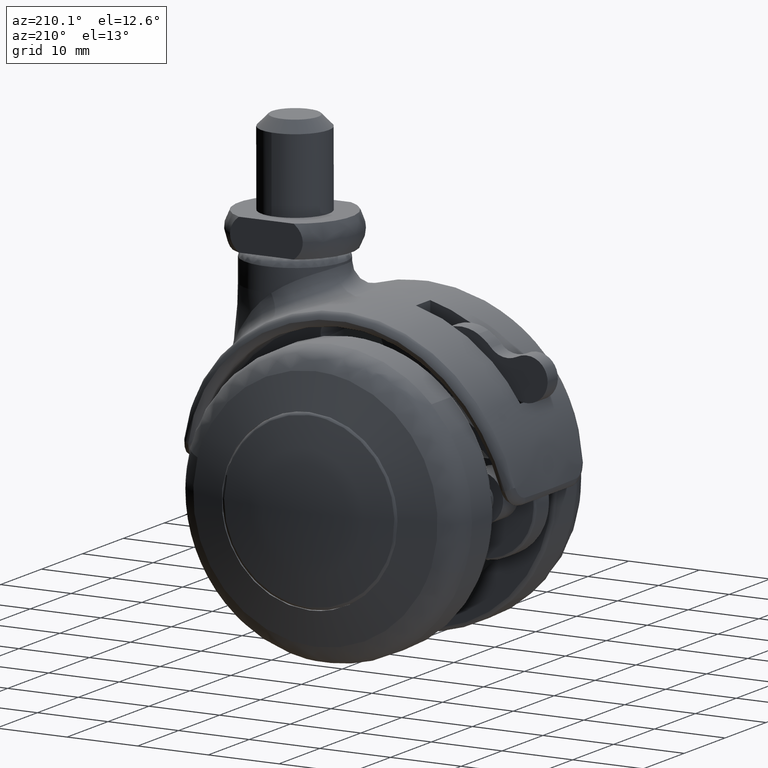
[diagram: clean part render]
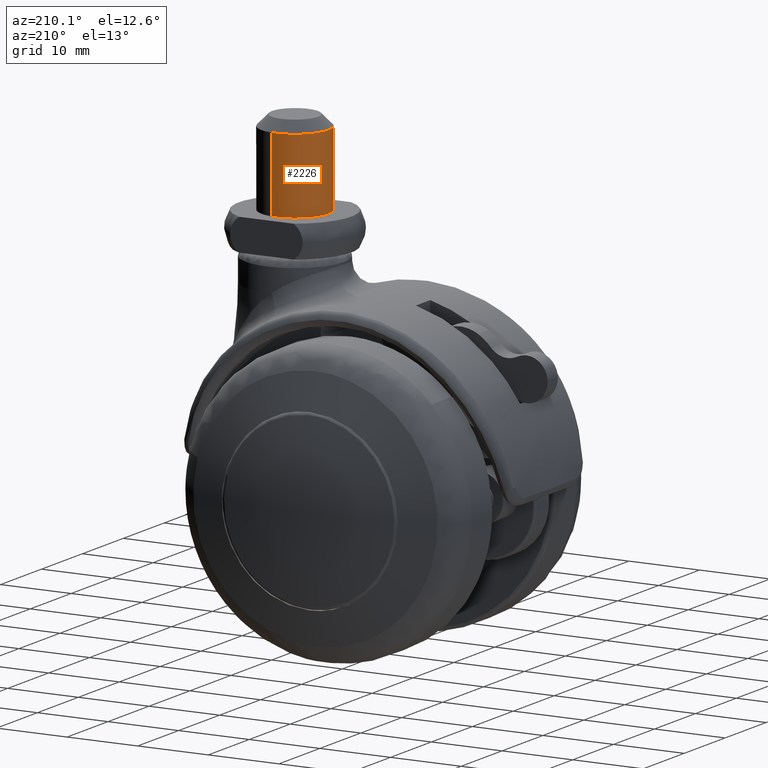
[diagram: same view with one face highlighted and labeled with its STEP entity id]
A machine part, auxiliary view. The second image highlights one B-rep face of the part: STEP entity #2226.
In plain terms, the highlighted face is a freeform B-spline surface patch.
Its self-contained STEP definition (entity closure, byte-faithful):
#1905=CARTESIAN_POINT('',(11.937861957099010,4.729207869309919,43.499999999955982));
#1906=VERTEX_POINT('',#1905);
#1907=CARTESIAN_POINT('',(13.091159609957870,4.725667843337538,43.500000000000000));
#1908=VERTEX_POINT('',#1907);
#1909=CARTESIAN_POINT('',(11.937861957099010,4.729207869309919,43.499999999955975));
#1910=CARTESIAN_POINT('',(12.217945129811174,4.762500000000001,43.500000000000014));
#1911=CARTESIAN_POINT('',(12.500000000000000,4.762500000000001,43.500000000000000));
#1912=CARTESIAN_POINT('',(12.796727217431563,4.762500000000001,43.500000000000000));
#1913=CARTESIAN_POINT('',(13.091159609957865,4.725667843337538,43.500000000000007));
#1921=(BOUNDED_CURVE()B_SPLINE_CURVE(2,(#1909,#1910,#1911,#1912,#1913),.UNSPECIFIED.,.F.,.U.)B_SPLINE_CURVE_WITH_KNOTS((3,2,3),(0.229562473491130,0.250000000000000,0.271473928974461),.UNSPECIFIED.)CURVE()GEOMETRIC_REPRESENTATION_ITEM()RATIONAL_B_SPLINE_CURVE((0.956026754139838,0.976055948304928,1.0,0.974841727288395,0.954005430267423))REPRESENTATION_ITEM(''));
#1922=EDGE_CURVE('',#1906,#1908,#1921,.T.);
#2019=CARTESIAN_POINT('',(7.737500000000001,9.551930E-016,43.500000000000000));
#2020=VERTEX_POINT('',#2019);
#2021=CARTESIAN_POINT('',(7.737500000000001,9.551930E-016,43.500000000000000));
#2022=CARTESIAN_POINT('',(7.737500000000001,4.229931179225524,43.500000000000000));
#2023=CARTESIAN_POINT('',(11.937861957099010,4.729207869309919,43.499999999955975));
#2031=(BOUNDED_CURVE()B_SPLINE_CURVE(2,(#2021,#2022,#2023),.UNSPECIFIED.,.F.,.U.)B_SPLINE_CURVE_WITH_KNOTS((3,3),(0.0,0.229562473491130),.UNSPECIFIED.)CURVE()GEOMETRIC_REPRESENTATION_ITEM()RATIONAL_B_SPLINE_CURVE((1.0,0.731050832881620,0.956026754139838))REPRESENTATION_ITEM(''));
#2032=EDGE_CURVE('',#2020,#1906,#2031,.T.);
#2034=CARTESIAN_POINT('',(12.458439874563970,-4.762318658592023,43.500000000000000));
#2035=VERTEX_POINT('',#2034);
#2036=CARTESIAN_POINT('',(12.458439874563974,-4.762318658592023,43.500000000000007));
#2037=CARTESIAN_POINT('',(7.737500000000003,-4.721119640210691,43.500000000000014));
#2038=CARTESIAN_POINT('',(7.737500000000001,9.551930E-016,43.500000000000000));
#2046=(BOUNDED_CURVE()B_SPLINE_CURVE(2,(#2036,#2037,#2038),.UNSPECIFIED.,.F.,.U.)B_SPLINE_CURVE_WITH_KNOTS((3,3),(0.751539894344236,1.0),.UNSPECIFIED.)CURVE()GEOMETRIC_REPRESENTATION_ITEM()RATIONAL_B_SPLINE_CURVE((0.996414028079002,0.708910879631011,1.0))REPRESENTATION_ITEM(''));
#2047=EDGE_CURVE('',#2035,#2020,#2046,.T.);
#2120=CARTESIAN_POINT('',(12.458439874579870,-4.762318658592162,32.999999990539102));
#2121=VERTEX_POINT('',#2120);
#2122=CARTESIAN_POINT('',(12.458439874563970,-4.762318658592023,43.500000000000000));
#2123=CARTESIAN_POINT('',(12.458439874579870,-4.762318658592162,32.999999990539102));
#2124=QUASI_UNIFORM_CURVE('',1,(#2122,#2123),.UNSPECIFIED.,.F.,.U.);
#2125=EDGE_CURVE('',#2035,#2121,#2124,.T.);
#2144=CARTESIAN_POINT('',(13.091159700149211,4.725667832055009,32.999999990539102));
#2145=VERTEX_POINT('',#2144);
#2159=CARTESIAN_POINT('',(13.091159609957870,4.725667843337538,43.500000000000000));
#2160=CARTESIAN_POINT('',(13.091159700149211,4.725667832055009,32.999999990539102));
#2161=QUASI_UNIFORM_CURVE('',1,(#2159,#2160),.UNSPECIFIED.,.F.,.U.);
#2162=EDGE_CURVE('',#1908,#2145,#2161,.T.);
#2167=CARTESIAN_POINT('',(12.458439874688990,-4.762318658593113,43.762500000236528));
#2168=CARTESIAN_POINT('',(7.696121216095881,-4.720758533282107,43.762500000236528));
#2169=CARTESIAN_POINT('',(7.737681341406886,0.041560125311007,43.762500000236528));
#2170=CARTESIAN_POINT('',(7.779241466717893,4.803878783904120,43.762500000236528));
#2171=CARTESIAN_POINT('',(12.541560125311010,4.762318658593115,43.762500000236528));
#2172=CARTESIAN_POINT('',(12.817421382038306,4.759911253877063,43.762500000236528));
#2173=CARTESIAN_POINT('',(13.091159609905191,4.725667843344128,43.762500000236528));
#2174=CARTESIAN_POINT('',(12.458439874688990,-4.762318658593113,32.730937490296647));
#2175=CARTESIAN_POINT('',(7.696121216095881,-4.720758533282107,32.730937490296647));
#2176=CARTESIAN_POINT('',(7.737681341406886,0.041560125311007,32.730937490296647));
#2177=CARTESIAN_POINT('',(7.779241466717893,4.803878783904120,32.730937490296647));
#2178=CARTESIAN_POINT('',(12.541560125311010,4.762318658593115,32.730937490296647));
#2179=CARTESIAN_POINT('',(12.817421382038306,4.759911253877063,32.730937490296661));
#2180=CARTESIAN_POINT('',(13.091159609905191,4.725667843344128,32.730937490296654));
#2188=(BOUNDED_SURFACE()B_SPLINE_SURFACE(2,1,((#2167,#2174),(#2168,#2175),(#2169,#2176),(#2170,#2177),(#2171,#2178),(#2172,#2179),(#2173,#2180)),.UNSPECIFIED.,.F.,.F.,.U.)B_SPLINE_SURFACE_WITH_KNOTS((3,2,2,3),(2,2),(0.0,7.890768363207459,15.781536726414920,16.412798195471520),(0.0,11.031562509939880),.UNSPECIFIED.)GEOMETRIC_REPRESENTATION_ITEM()RATIONAL_B_SPLINE_SURFACE(((1.0,1.0),(0.707106781186548,0.707106781186548),(1.0,1.0),(0.707106781186548,0.707106781186548),(1.0,1.0),(0.976568542494924,0.976568542494924),(0.956886118190660,0.956886118190660)))REPRESENTATION_ITEM('')SURFACE());
#2189=ORIENTED_EDGE('',*,*,#2032,.T.);
#2190=ORIENTED_EDGE('',*,*,#1922,.T.);
#2191=ORIENTED_EDGE('',*,*,#2162,.T.);
#2192=CARTESIAN_POINT('',(7.737500000000001,9.551930E-016,32.999999990539102));
#2193=VERTEX_POINT('',#2192);
#2194=CARTESIAN_POINT('',(13.091159700149204,4.725667832055010,32.999999990539102));
#2195=CARTESIAN_POINT('',(12.796727308678703,4.762500000000001,32.999999990539088));
#2196=CARTESIAN_POINT('',(12.500000000000000,4.762500000000001,32.999999990539102));
#2197=CARTESIAN_POINT('',(7.737500000000002,4.762500000000002,32.999999990539095));
#2198=CARTESIAN_POINT('',(7.737500000000001,9.551930E-016,32.999999990539102));
#2206=(BOUNDED_CURVE()B_SPLINE_CURVE(2,(#2194,#2195,#2196,#2197,#2198),.UNSPECIFIED.,.F.,.U.)B_SPLINE_CURVE_WITH_KNOTS((3,2,3),(0.728526064588183,0.750000000000000,1.0),.UNSPECIFIED.)CURVE()GEOMETRIC_REPRESENTATION_ITEM()RATIONAL_B_SPLINE_CURVE((0.954005417775004,0.974841719746563,1.0,0.707106781186548,1.0))REPRESENTATION_ITEM(''));
#2207=EDGE_CURVE('',#2145,#2193,#2206,.T.);
#2208=ORIENTED_EDGE('',*,*,#2207,.T.);
#2209=CARTESIAN_POINT('',(7.737500000000001,9.551930E-016,32.999999990539102));
#2210=CARTESIAN_POINT('',(7.737500000000001,-4.721119640242203,32.999999990539095));
#2211=CARTESIAN_POINT('',(12.458439874579863,-4.762318658592162,32.999999990539095));
#2219=(BOUNDED_CURVE()B_SPLINE_CURVE(2,(#2209,#2210,#2211),.UNSPECIFIED.,.F.,.U.)B_SPLINE_CURVE_WITH_KNOTS((3,3),(0.0,0.248460105656940),.UNSPECIFIED.)CURVE()GEOMETRIC_REPRESENTATION_ITEM()RATIONAL_B_SPLINE_CURVE((1.0,0.708910879629633,0.996414028081723))REPRESENTATION_ITEM(''));
#2220=EDGE_CURVE('',#2193,#2121,#2219,.T.);
#2221=ORIENTED_EDGE('',*,*,#2220,.T.);
#2222=ORIENTED_EDGE('',*,*,#2125,.F.);
#2223=ORIENTED_EDGE('',*,*,#2047,.T.);
#2224=EDGE_LOOP('',(#2189,#2190,#2191,#2208,#2221,#2222,#2223));
#2225=FACE_OUTER_BOUND('',#2224,.T.);
#2226=ADVANCED_FACE('',(#2225),#2188,.T.);